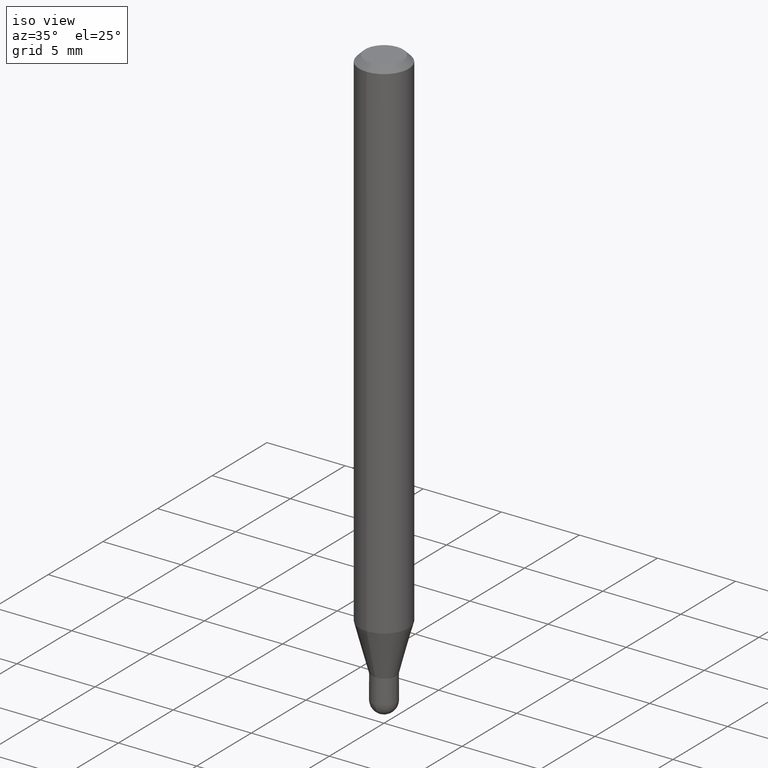
[diagram: clean part render]
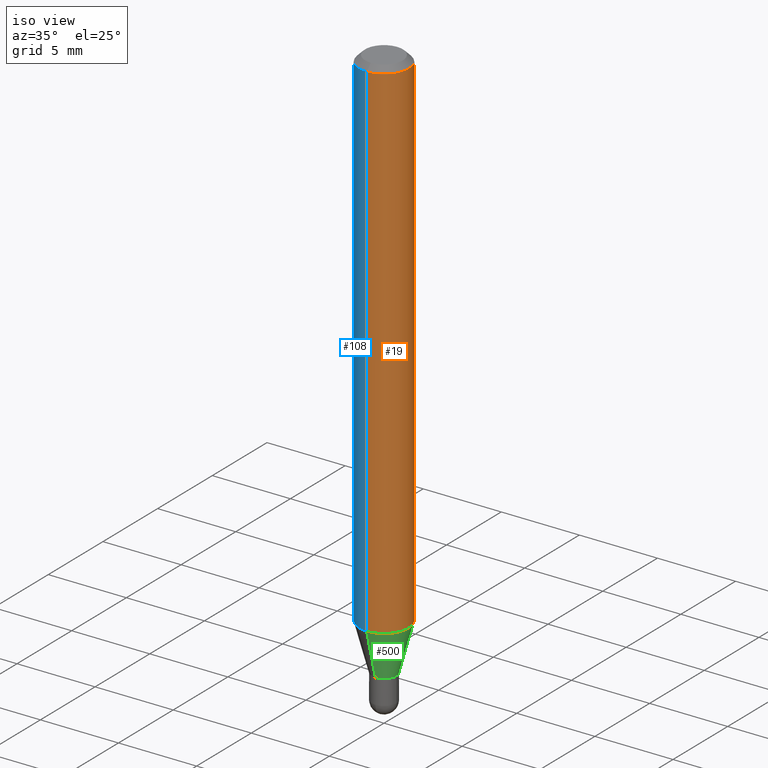
[diagram: same view with three faces highlighted in distinct colors, each labeled with its STEP entity id]
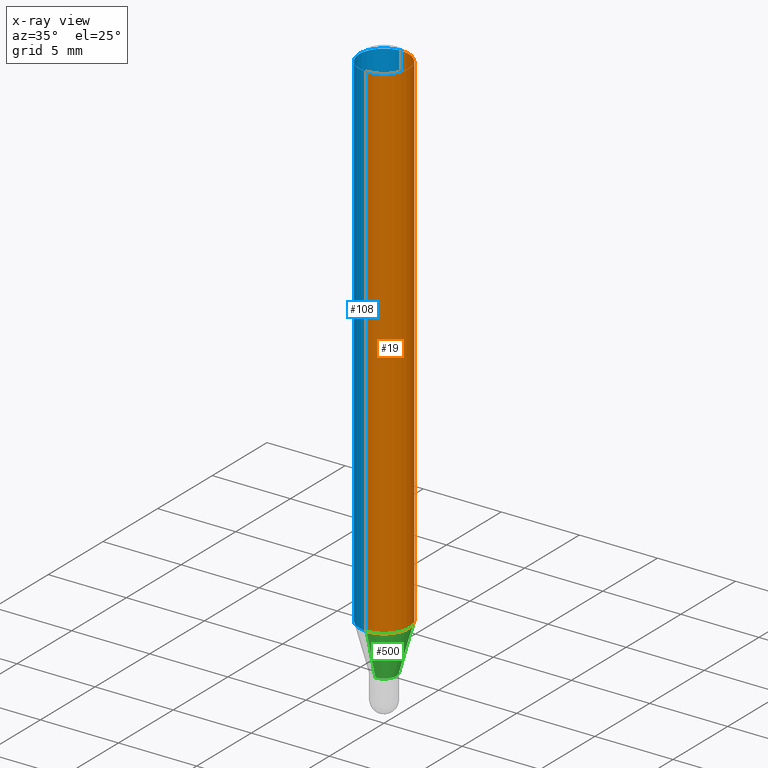
[diagram: x-ray of the same camera — body ghosted, the three highlighted faces saturated]
A machine part, iso view with three faces highlighted in distinct colors.
The next image is the same camera in x-ray (body ghosted, the three faces saturated) — at least one of them is partly hidden behind the body in this view.
Their STEP definitions:

[orange] entity #19 — the highlighted cylindrical surface (edge-blend (fillet) strip) has radius 1.5875 mm, axis along (-0, 0, 1).
#2 = VERTEX_POINT ( 'NONE', #159 ) ;
#19 = ADVANCED_FACE ( 'NONE', ( #417 ), #375, .T. ) ;
#31 = DIRECTION ( 'NONE',  ( -2.445442830972087689E-29, 3.491518536826648695E-15, 1.000000000000000000 ) ) ;
#41 = AXIS2_PLACEMENT_3D ( 'NONE', #354, #198, #147 ) ;
#63 = DIRECTION ( 'NONE',  ( -6.982962677686265922E-15, -1.000000000000000000, 4.370956789862821150E-15 ) ) ;
#92 = DIRECTION ( 'NONE',  ( -6.982962677686265922E-15, -1.000000000000000000, 3.491518536826648695E-15 ) ) ;
#103 = VERTEX_POINT ( 'NONE', #484 ) ;
#133 = ORIENTED_EDGE ( 'NONE', *, *, #280, .T. ) ;
#140 = CARTESIAN_POINT ( 'NONE',  ( 4.440892098500625669E-16, 0.06250000000000000000, -2.182199085516655434E-16 ) ) ;
#147 = DIRECTION ( 'NONE',  ( -6.982962677686265922E-15, -1.000000000000000000, 3.483106191921935554E-15 ) ) ;
#156 = VECTOR ( 'NONE', #31, 39.37007874015748143 ) ;
#159 = CARTESIAN_POINT ( 'NONE',  ( 4.440892098500942692E-16, 0.06249999999999995143, -0.01500000000000028394 ) ) ;
#162 = ORIENTED_EDGE ( 'NONE', *, *, #273, .T. ) ;
#181 = AXIS2_PLACEMENT_3D ( 'NONE', #251, #379, #92 ) ;
#191 = CIRCLE ( 'NONE', #395, 0.06250000000000000000 ) ;
#198 = DIRECTION ( 'NONE',  ( -2.445442830972087969E-29, 3.491518536826648695E-15, 1.000000000000000000 ) ) ;
#204 = EDGE_CURVE ( 'NONE', #237, #296, #430, .T. ) ;
#226 = DIRECTION ( 'NONE',  ( -2.445442830972087689E-29, 3.491518536826648695E-15, 1.000000000000000000 ) ) ;
#229 = ORIENTED_EDGE ( 'NONE', *, *, #204, .F. ) ;
#230 = CARTESIAN_POINT ( 'NONE',  ( -4.364351673553912750E-16, -0.06250000000000005551, -0.01499999999999984852 ) ) ;
#233 = LINE ( 'NONE', #140, #156 ) ;
#237 = VERTEX_POINT ( 'NONE', #420 ) ;
#251 = CARTESIAN_POINT ( 'NONE',  ( 0.000000000000000000, 0.000000000000000000, 0.000000000000000000 ) ) ;
#273 = EDGE_CURVE ( 'NONE', #237, #103, #191, .T. ) ;
#276 = DIRECTION ( 'NONE',  ( -2.445442830972087969E-29, 3.491518536826648695E-15, 1.000000000000000000 ) ) ;
#280 = EDGE_CURVE ( 'NONE', #103, #2, #233, .T. ) ;
#294 = CIRCLE ( 'NONE', #41, 0.06250000000000000000 ) ;
#296 = VERTEX_POINT ( 'NONE', #230 ) ;
#333 = ORIENTED_EDGE ( 'NONE', *, *, #383, .F. ) ;
#354 = CARTESIAN_POINT ( 'NONE',  ( 3.668164246458148296E-31, -5.237277805239995993E-17, -0.01500000000000006710 ) ) ;
#375 = CYLINDRICAL_SURFACE ( 'NONE', #181, 0.06250000000000000000 ) ;
#379 = DIRECTION ( 'NONE',  ( -2.445442830972087969E-29, 3.491518536826648695E-15, 1.000000000000000000 ) ) ;
#383 = EDGE_CURVE ( 'NONE', #296, #2, #294, .T. ) ;
#384 = CARTESIAN_POINT ( 'NONE',  ( -4.364351673553916201E-16, -0.06250000000000000000, 2.182199085516655434E-16 ) ) ;
#390 = CARTESIAN_POINT ( 'NONE',  ( 3.153252781073657425E-29, -4.502105057202427276E-15, -1.289440399561582851 ) ) ;
#395 = AXIS2_PLACEMENT_3D ( 'NONE', #390, #276, #63 ) ;
#417 = FACE_OUTER_BOUND ( 'NONE', #441, .T. ) ;
#420 = CARTESIAN_POINT ( 'NONE',  ( -4.364351673553602629E-16, -0.06250000000000452416, -1.289440399561582629 ) ) ;
#430 = LINE ( 'NONE', #384, #439 ) ;
#439 = VECTOR ( 'NONE', #226, 39.37007874015748143 ) ;
#441 = EDGE_LOOP ( 'NONE', ( #162, #133, #333, #229 ) ) ;
#484 = CARTESIAN_POINT ( 'NONE',  ( 4.440892098500937762E-16, 0.06249999999999546890, -1.289440399561583073 ) ) ;

[blue] entity #108 — the highlighted cylindrical surface (edge-blend (fillet) strip) has radius 1.5875 mm, axis along (-0, 0, 1).
#2 = VERTEX_POINT ( 'NONE', #159 ) ;
#31 = DIRECTION ( 'NONE',  ( -2.445442830972087689E-29, 3.491518536826648695E-15, 1.000000000000000000 ) ) ;
#44 = DIRECTION ( 'NONE',  ( -2.445442830972087969E-29, 3.491518536826648695E-15, 1.000000000000000000 ) ) ;
#46 = FACE_OUTER_BOUND ( 'NONE', #480, .T. ) ;
#47 = ORIENTED_EDGE ( 'NONE', *, *, #396, .T. ) ;
#52 = DIRECTION ( 'NONE',  ( -2.445442830972087969E-29, 3.491518536826648695E-15, 1.000000000000000000 ) ) ;
#70 = AXIS2_PLACEMENT_3D ( 'NONE', #394, #44, #278 ) ;
#73 = ORIENTED_EDGE ( 'NONE', *, *, #280, .F. ) ;
#97 = CIRCLE ( 'NONE', #357, 0.06250000000000000000 ) ;
#103 = VERTEX_POINT ( 'NONE', #484 ) ;
#108 = ADVANCED_FACE ( 'NONE', ( #46 ), #330, .T. ) ;
#140 = CARTESIAN_POINT ( 'NONE',  ( 4.440892098500625669E-16, 0.06250000000000000000, -2.182199085516655434E-16 ) ) ;
#156 = VECTOR ( 'NONE', #31, 39.37007874015748143 ) ;
#159 = CARTESIAN_POINT ( 'NONE',  ( 4.440892098500942692E-16, 0.06249999999999995143, -0.01500000000000028394 ) ) ;
#204 = EDGE_CURVE ( 'NONE', #237, #296, #430, .T. ) ;
#224 = AXIS2_PLACEMENT_3D ( 'NONE', #340, #52, #489 ) ;
#225 = ORIENTED_EDGE ( 'NONE', *, *, #204, .T. ) ;
#226 = DIRECTION ( 'NONE',  ( -2.445442830972087689E-29, 3.491518536826648695E-15, 1.000000000000000000 ) ) ;
#230 = CARTESIAN_POINT ( 'NONE',  ( -4.364351673553912750E-16, -0.06250000000000005551, -0.01499999999999984852 ) ) ;
#233 = LINE ( 'NONE', #140, #156 ) ;
#237 = VERTEX_POINT ( 'NONE', #420 ) ;
#278 = DIRECTION ( 'NONE',  ( -6.982962677686265922E-15, -1.000000000000000000, 3.483106191921935554E-15 ) ) ;
#280 = EDGE_CURVE ( 'NONE', #103, #2, #233, .T. ) ;
#296 = VERTEX_POINT ( 'NONE', #230 ) ;
#330 = CYLINDRICAL_SURFACE ( 'NONE', #224, 0.06250000000000000000 ) ;
#340 = CARTESIAN_POINT ( 'NONE',  ( 0.000000000000000000, 0.000000000000000000, 0.000000000000000000 ) ) ;
#357 = AXIS2_PLACEMENT_3D ( 'NONE', #511, #509, #476 ) ;
#376 = ORIENTED_EDGE ( 'NONE', *, *, #495, .F. ) ;
#384 = CARTESIAN_POINT ( 'NONE',  ( -4.364351673553916201E-16, -0.06250000000000000000, 2.182199085516655434E-16 ) ) ;
#394 = CARTESIAN_POINT ( 'NONE',  ( 3.668164246458148296E-31, -5.237277805239995993E-17, -0.01500000000000006710 ) ) ;
#396 = EDGE_CURVE ( 'NONE', #103, #237, #97, .T. ) ;
#420 = CARTESIAN_POINT ( 'NONE',  ( -4.364351673553602629E-16, -0.06250000000000452416, -1.289440399561582629 ) ) ;
#430 = LINE ( 'NONE', #384, #439 ) ;
#432 = CIRCLE ( 'NONE', #70, 0.06250000000000000000 ) ;
#439 = VECTOR ( 'NONE', #226, 39.37007874015748143 ) ;
#476 = DIRECTION ( 'NONE',  ( -6.982962677686265922E-15, -1.000000000000000000, 4.370956789862821150E-15 ) ) ;
#480 = EDGE_LOOP ( 'NONE', ( #73, #47, #225, #376 ) ) ;
#484 = CARTESIAN_POINT ( 'NONE',  ( 4.440892098500937762E-16, 0.06249999999999546890, -1.289440399561583073 ) ) ;
#489 = DIRECTION ( 'NONE',  ( -6.982962677686265922E-15, -1.000000000000000000, 3.491518536826648695E-15 ) ) ;
#495 = EDGE_CURVE ( 'NONE', #2, #296, #432, .T. ) ;
#509 = DIRECTION ( 'NONE',  ( -2.445442830972087969E-29, 3.491518536826648695E-15, 1.000000000000000000 ) ) ;
#511 = CARTESIAN_POINT ( 'NONE',  ( 3.153252781073657425E-29, -4.502105057202427276E-15, -1.289440399561582851 ) ) ;

[green] entity #500 — the highlighted conical surface has half-angle 15 deg.
#6 = CARTESIAN_POINT ( 'NONE',  ( 3.440738063177728065E-29, -4.912566581315094135E-15, -1.407000000000000028 ) ) ;
#33 = FACE_OUTER_BOUND ( 'NONE', #150, .T. ) ;
#37 = ORIENTED_EDGE ( 'NONE', *, *, #146, .T. ) ;
#63 = DIRECTION ( 'NONE',  ( -6.982962677686265922E-15, -1.000000000000000000, 4.370956789862821150E-15 ) ) ;
#66 = CARTESIAN_POINT ( 'NONE',  ( -2.164718430082374026E-16, -0.03100000000000456210, -1.407000000000000028 ) ) ;
#68 = CARTESIAN_POINT ( 'NONE',  ( 2.202682480856629310E-16, 0.03099999999999473663, -1.407000000000000028 ) ) ;
#72 = DIRECTION ( 'NONE',  ( -6.982962677686265922E-15, -1.000000000000000000, 0.000000000000000000 ) ) ;
#78 = CARTESIAN_POINT ( 'NONE',  ( -2.164718430082374026E-16, -0.03100000000000456210, -1.407000000000000028 ) ) ;
#89 = CIRCLE ( 'NONE', #289, 0.03099999999999964936 ) ;
#103 = VERTEX_POINT ( 'NONE', #484 ) ;
#146 = EDGE_CURVE ( 'NONE', #158, #413, #89, .T. ) ;
#148 = VECTOR ( 'NONE', #244, 39.37007874015748854 ) ;
#150 = EDGE_LOOP ( 'NONE', ( #37, #325, #460, #192 ) ) ;
#157 = DIRECTION ( 'NONE',  ( -6.982962677686265922E-15, -1.000000000000000000, 0.000000000000000000 ) ) ;
#158 = VERTEX_POINT ( 'NONE', #66 ) ;
#191 = CIRCLE ( 'NONE', #395, 0.06250000000000000000 ) ;
#192 = ORIENTED_EDGE ( 'NONE', *, *, #423, .F. ) ;
#194 = CARTESIAN_POINT ( 'NONE',  ( 3.440738063177728065E-29, -4.912566581315094135E-15, -1.407000000000000028 ) ) ;
#199 = CONICAL_SURFACE ( 'NONE', #477, 0.03099999999999964936, 0.2617993877991574014 ) ;
#237 = VERTEX_POINT ( 'NONE', #420 ) ;
#244 = DIRECTION ( 'NONE',  ( -1.807323732225378260E-15, -0.2588190451025250693, 0.9659258262890670910 ) ) ;
#273 = EDGE_CURVE ( 'NONE', #237, #103, #191, .T. ) ;
#276 = DIRECTION ( 'NONE',  ( -2.445442830972087969E-29, 3.491518536826648695E-15, 1.000000000000000000 ) ) ;
#279 = DIRECTION ( 'NONE',  ( -2.445442830972087969E-29, 3.491518536826648695E-15, 1.000000000000000000 ) ) ;
#289 = AXIS2_PLACEMENT_3D ( 'NONE', #6, #414, #157 ) ;
#325 = ORIENTED_EDGE ( 'NONE', *, *, #404, .T. ) ;
#390 = CARTESIAN_POINT ( 'NONE',  ( 3.153252781073657425E-29, -4.502105057202427276E-15, -1.289440399561582851 ) ) ;
#395 = AXIS2_PLACEMENT_3D ( 'NONE', #390, #276, #63 ) ;
#404 = EDGE_CURVE ( 'NONE', #413, #103, #470, .T. ) ;
#413 = VERTEX_POINT ( 'NONE', #433 ) ;
#414 = DIRECTION ( 'NONE',  ( -2.445442830972087969E-29, 3.491518536826648695E-15, 1.000000000000000000 ) ) ;
#420 = CARTESIAN_POINT ( 'NONE',  ( -4.364351673553602629E-16, -0.06250000000000452416, -1.289440399561582629 ) ) ;
#423 = EDGE_CURVE ( 'NONE', #158, #237, #436, .T. ) ;
#433 = CARTESIAN_POINT ( 'NONE',  ( 3.321787289678785878E-16, 0.03099999999999473663, -1.407000000000000028 ) ) ;
#436 = LINE ( 'NONE', #78, #148 ) ;
#455 = VECTOR ( 'NONE', #505, 39.37007874015748143 ) ;
#460 = ORIENTED_EDGE ( 'NONE', *, *, #273, .F. ) ;
#470 = LINE ( 'NONE', #68, #455 ) ;
#477 = AXIS2_PLACEMENT_3D ( 'NONE', #194, #279, #72 ) ;
#484 = CARTESIAN_POINT ( 'NONE',  ( 4.440892098500937762E-16, 0.06249999999999546890, -1.289440399561583073 ) ) ;
#500 = ADVANCED_FACE ( 'NONE', ( #33 ), #199, .T. ) ;
#505 = DIRECTION ( 'NONE',  ( 1.839019923739649225E-15, 0.2588190451025318417, 0.9659258262890653146 ) ) ;